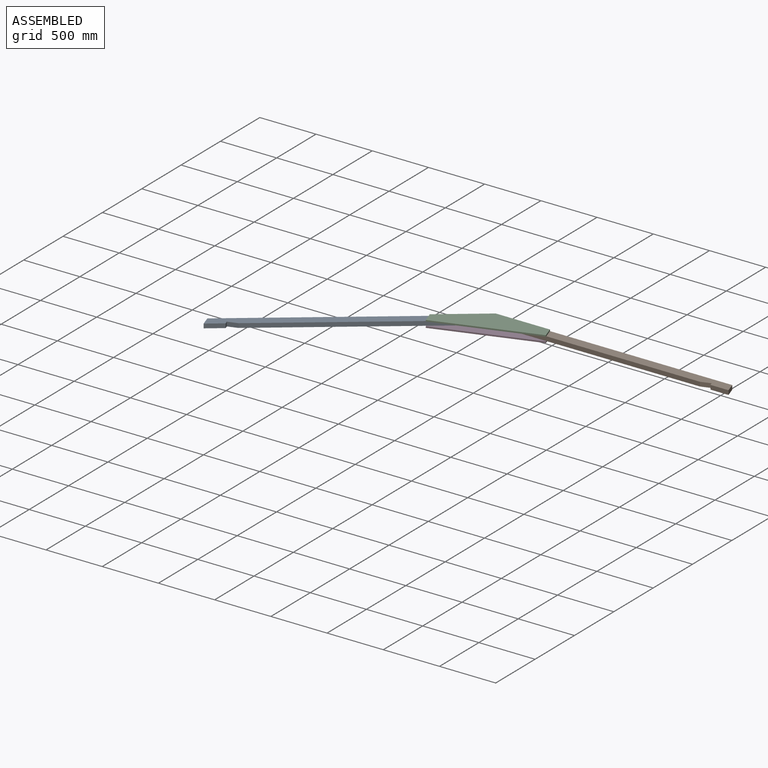
[diagram: assembled view]
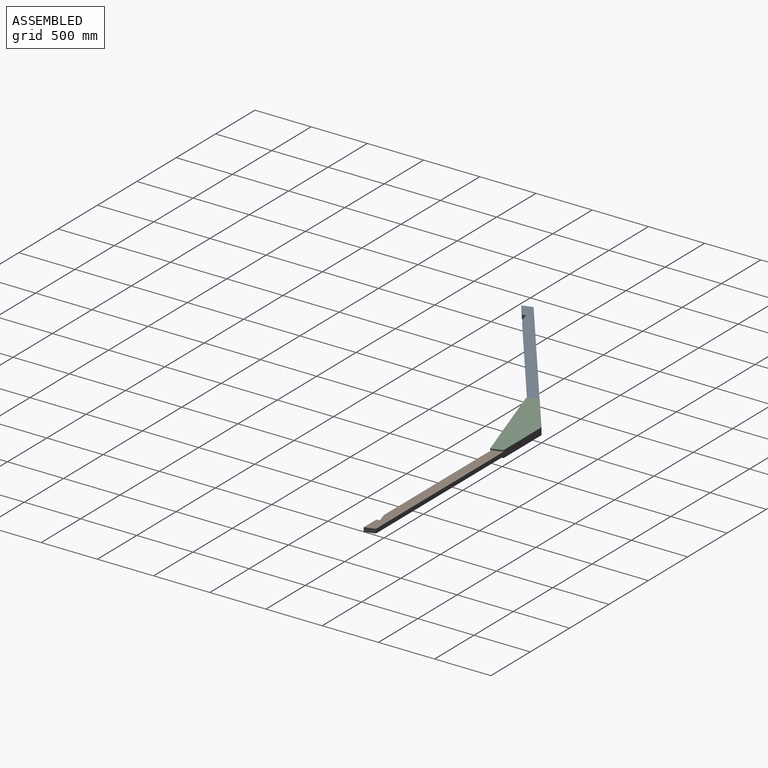
[diagram: assembled view, second angle]
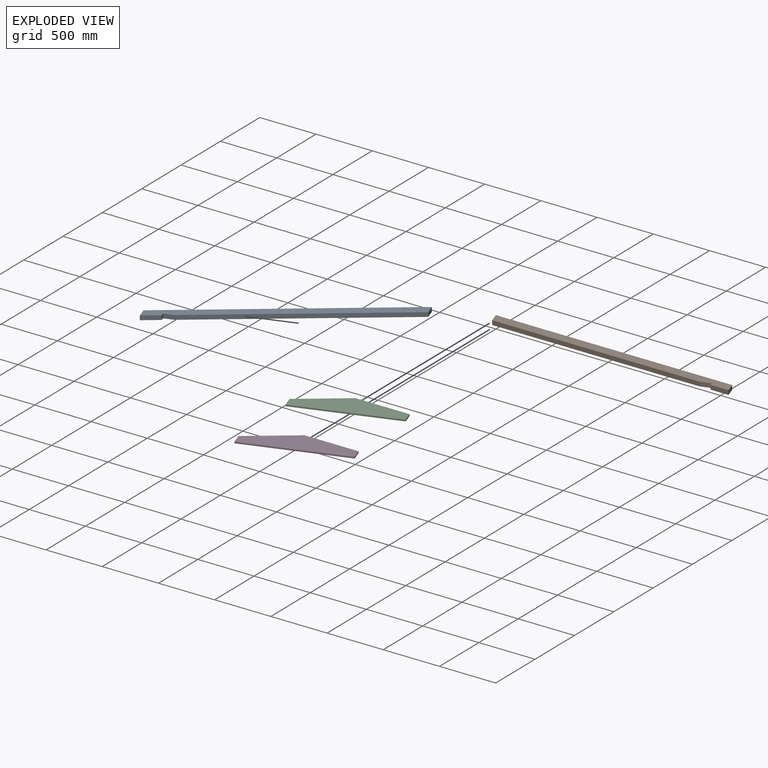
[diagram: exploded view]
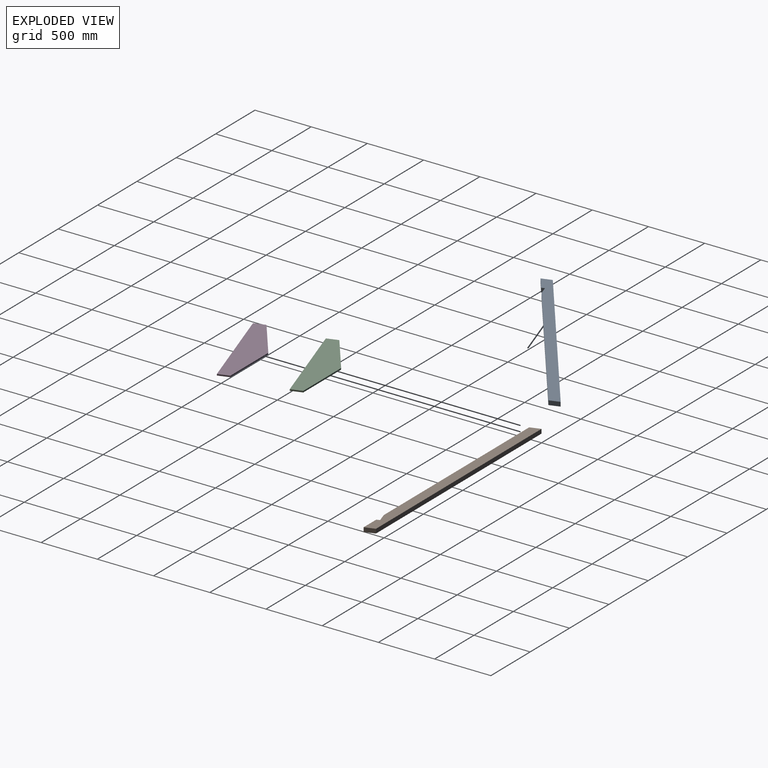
[diagram: exploded view, second angle]
ASSEMBLY  parts=4 mates=3
PART A: 9 faces, bbox 2132x88.9x38.1 mm
  f0: plane 160.34x38.1mm, normal (0,-1,0), area 6108.9mm2, adj f2,f3,f6,f8
  f1: plane 1848.68x38.1mm, normal (0,-1,0), area 70434.7mm2, adj f2,f3,f5,f7
  f2: plane 2132.01x88.9mm, normal (0,0,1), area 185619.6mm2, adj f0,f1,f4,f5,f6,f7,f8
  f3: plane 2132.01x88.9mm, normal (0,0,-1), area 185619.6mm2, adj f0,f1,f4,f5,f6,f7,f8
  f4: plane 2102.64x38.1mm, normal (0,1,0), area 80110.7mm2, adj f2,f3,f5,f8
  f5: plane 88.9x38.1mm, normal (-0.95,-0.31,0), area 3567.1mm2, adj f1,f2,f3,f4
  f6: plane 38.1x27.89mm, normal (-0.95,-0.31,0), area 1118.9mm2, adj f0,f2,f3,f7
  f7: plane 84.41x38.1mm, normal (0.31,-0.95,0), area 3387.1mm2, adj f1,f2,f3,f6
  f8: plane 88.9x38.1mm, normal (0.95,0.31,0), area 3567.1mm2, adj f0,f2,f3,f4
PART B: same geometry as A
PART C: 7 faces, bbox 914.4x254x12.7 mm
  f0: plane 102.96x12.7mm, normal (-1,0,0), area 1307.6mm2, adj f1,f4,f5,f6
  f1: plane 914.4x12.7mm, normal (0,-1,0), area 11612.9mm2, adj f0,f2,f5,f6
  f2: plane 102.96x12.7mm, normal (1,0,0), area 1307.6mm2, adj f1,f3,f5,f6
  f3: plane 457.2x151.04mm, normal (0.31,0.95,0), area 6115.1mm2, adj f2,f4,f5,f6
  f4: plane 457.2x151.04mm, normal (-0.31,0.95,0), area 6115.1mm2, adj f0,f3,f5,f6
  f5: plane 914.4x254mm, normal (0,0,1), area 163202.4mm2, adj f0,f1,f2,f3,f4
  f6: plane 914.4x254mm, normal (0,0,-1), area 163202.4mm2, adj f0,f1,f2,f3,f4
PART D: same geometry as C
PLACE A rot(axis=(-0.31,0.95,0),180deg) t=(52.96,-71.4,0)mm
PLACE B t=(0,-88.9,-38.1)mm
PLACE C rot(axis=(0,0,1),18.3deg) t=(-354.45,-384.6,0)mm
PLACE D rot(axis=(0,0,1),18.3deg) t=(-354.45,-384.6,-50.8)mm
MATE fastened C.f3 <-> B.f4  axis (0,1,0) through (0,0,0)mm
MATE fastened D.f3 <-> B.f4  axis (0,1,0) through (0,0,-38.1)mm
MATE fastened A.f5 <-> B.f5  axis (0.95,0.31,0) through (14.68,-44.45,-19.05)mm
